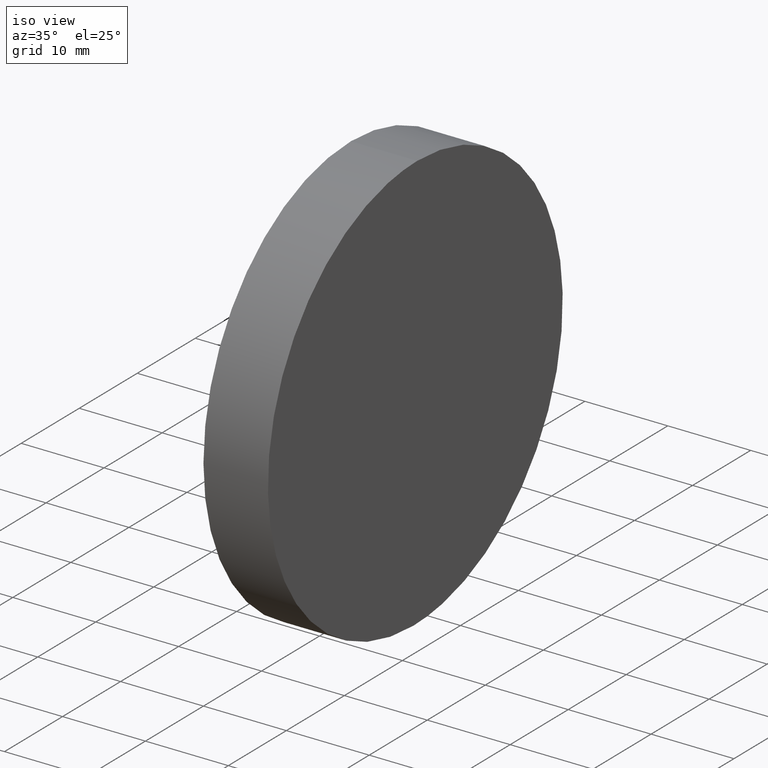
[diagram: clean part render]
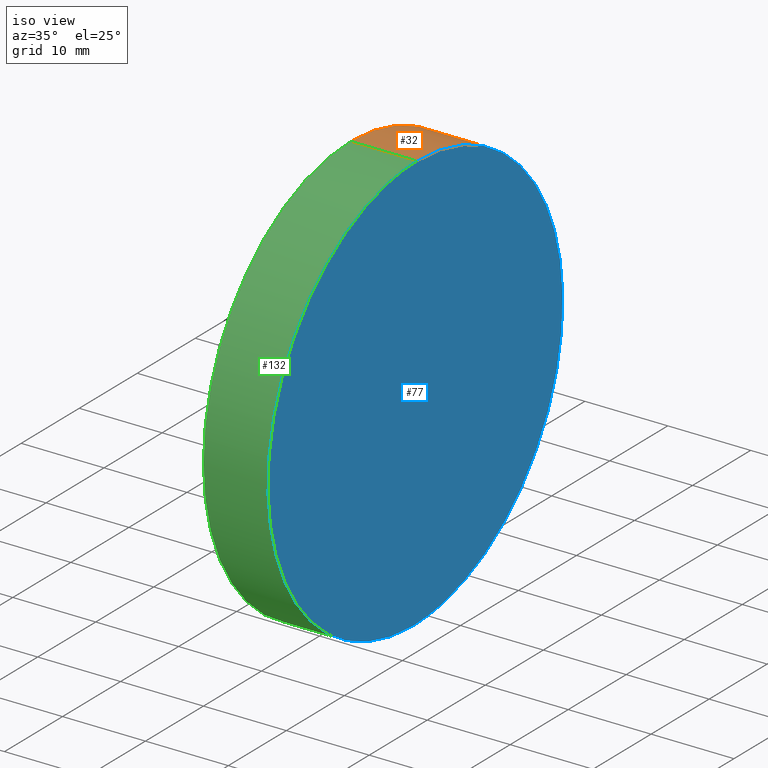
[diagram: same view with three faces highlighted in distinct colors, each labeled with its STEP entity id]
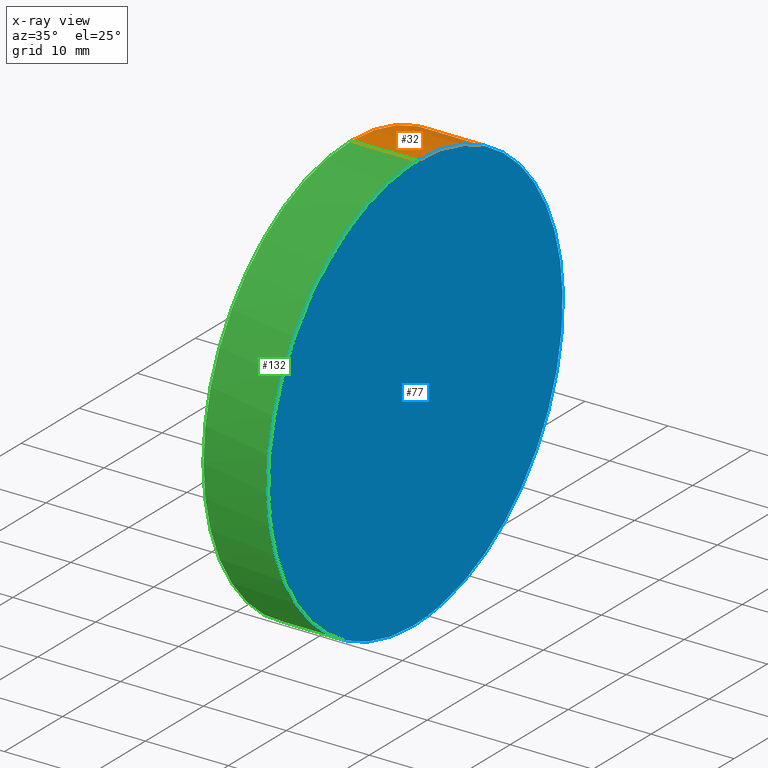
[diagram: x-ray of the same camera — body ghosted, the three highlighted faces saturated]
A machine part, iso view with three faces highlighted in distinct colors.
The next image is the same camera in x-ray (body ghosted, the three faces saturated) — at least one of them is partly hidden behind the body in this view.
Their STEP definitions:

[orange] entity #32 — the highlighted cylindrical surface (partial cylindrical patch) has radius 25.4 mm, axis along (-1, -0, -0).
#1 = VERTEX_POINT ( 'NONE', #109 ) ;
#6 = CARTESIAN_POINT ( 'NONE',  ( 8.000000000000005300, 76.19999999999998900, 25.39999999999999900 ) ) ;
#7 = EDGE_LOOP ( 'NONE', ( #86, #9, #41, #103 ) ) ;
#9 = ORIENTED_EDGE ( 'NONE', *, *, #98, .T. ) ;
#15 = CARTESIAN_POINT ( 'NONE',  ( 12.50000000000000000, 25.40000000000000200, -25.39999999999999900 ) ) ;
#18 = CARTESIAN_POINT ( 'NONE',  ( 0.0000000000000000000, 25.40000000000000200, -25.39999999999999900 ) ) ;
#20 = CARTESIAN_POINT ( 'NONE',  ( 12.50000000000000000, 25.39999999999999900, 0.0000000000000000000 ) ) ;
#22 = AXIS2_PLACEMENT_3D ( 'NONE', #137, #63, #129 ) ;
#23 = VECTOR ( 'NONE', #70, 1000.000000000000000 ) ;
#31 = CARTESIAN_POINT ( 'NONE',  ( 0.0000000000000000000, 25.39999999999999900, 25.39999999999999900 ) ) ;
#32 = ADVANCED_FACE ( 'NONE', ( #37 ), #121, .T. ) ;
#33 = DIRECTION ( 'NONE',  ( 0.0000000000000000000, 0.0000000000000000000, 1.000000000000000000 ) ) ;
#35 = LINE ( 'NONE', #15, #23 ) ;
#37 = FACE_OUTER_BOUND ( 'NONE', #7, .T. ) ;
#41 = ORIENTED_EDGE ( 'NONE', *, *, #133, .F. ) ;
#54 = LINE ( 'NONE', #106, #105 ) ;
#56 = CARTESIAN_POINT ( 'NONE',  ( 8.000000000000005300, 25.39999999999999900, 25.39999999999999900 ) ) ;
#60 =( BOUNDED_CURVE ( )  B_SPLINE_CURVE ( 3, ( #56, #6, #139, #64 ),
 .UNSPECIFIED., .F., .T. ) 
 B_SPLINE_CURVE_WITH_KNOTS ( ( 4, 4 ),
 ( 3.141592653589793100, 6.283185307179586200 ),
 .UNSPECIFIED. ) 
 CURVE ( )  GEOMETRIC_REPRESENTATION_ITEM ( )  RATIONAL_B_SPLINE_CURVE ( ( 1.000000000000000000, 0.3333333333333333700, 0.3333333333333333700, 1.000000000000000000 ) ) 
 REPRESENTATION_ITEM ( '' )  );
#63 = DIRECTION ( 'NONE',  ( -1.000000000000000000, 0.0000000000000000000, 0.0000000000000000000 ) ) ;
#64 = CARTESIAN_POINT ( 'NONE',  ( 7.556675116229812700, 25.40000000000000200, -25.39999999999999900 ) ) ;
#67 = VERTEX_POINT ( 'NONE', #18 ) ;
#70 = DIRECTION ( 'NONE',  ( -1.000000000000000000, -0.0000000000000000000, -0.0000000000000000000 ) ) ;
#74 = VERTEX_POINT ( 'NONE', #31 ) ;
#78 = CARTESIAN_POINT ( 'NONE',  ( 8.000000000000005300, 25.39999999999999900, 25.39999999999999900 ) ) ;
#79 = DIRECTION ( 'NONE',  ( -1.000000000000000000, -0.0000000000000000000, -0.0000000000000000000 ) ) ;
#82 = DIRECTION ( 'NONE',  ( -1.000000000000000000, -0.0000000000000000000, -0.0000000000000000000 ) ) ;
#83 = AXIS2_PLACEMENT_3D ( 'NONE', #20, #82, #33 ) ;
#86 = ORIENTED_EDGE ( 'NONE', *, *, #95, .T. ) ;
#95 = EDGE_CURVE ( 'NONE', #114, #1, #60, .T. ) ;
#98 = EDGE_CURVE ( 'NONE', #1, #67, #35, .T. ) ;
#103 = ORIENTED_EDGE ( 'NONE', *, *, #111, .F. ) ;
#105 = VECTOR ( 'NONE', #79, 1000.000000000000000 ) ;
#106 = CARTESIAN_POINT ( 'NONE',  ( 12.50000000000000000, 25.39999999999999900, 25.39999999999999900 ) ) ;
#109 = CARTESIAN_POINT ( 'NONE',  ( 7.556675116229812700, 25.40000000000000200, -25.39999999999999900 ) ) ;
#111 = EDGE_CURVE ( 'NONE', #114, #74, #54, .T. ) ;
#114 = VERTEX_POINT ( 'NONE', #78 ) ;
#121 = CYLINDRICAL_SURFACE ( 'NONE', #83, 25.39999999999999900 ) ;
#129 = DIRECTION ( 'NONE',  ( 0.0000000000000000000, 0.0000000000000000000, 1.000000000000000000 ) ) ;
#133 = EDGE_CURVE ( 'NONE', #74, #67, #134, .T. ) ;
#134 = CIRCLE ( 'NONE', #22, 25.39999999999999900 ) ;
#137 = CARTESIAN_POINT ( 'NONE',  ( 0.0000000000000000000, 25.39999999999999900, 0.0000000000000000000 ) ) ;
#139 = CARTESIAN_POINT ( 'NONE',  ( 7.556675116229813600, 76.19999999999998900, -25.39999999999999900 ) ) ;

[blue] entity #77 — the highlighted planar face has unit normal (-1, 0, 0.0087).
#1 = VERTEX_POINT ( 'NONE', #109 ) ;
#6 = CARTESIAN_POINT ( 'NONE',  ( 8.000000000000005300, 76.19999999999998900, 25.39999999999999900 ) ) ;
#8 = CARTESIAN_POINT ( 'NONE',  ( 8.000000000000005300, 50.79999999999999700, 25.39999999999999900 ) ) ;
#21 = AXIS2_PLACEMENT_3D ( 'NONE', #8, #71, #140 ) ;
#34 = EDGE_CURVE ( 'NONE', #1, #114, #36, .T. ) ;
#36 =( BOUNDED_CURVE ( )  B_SPLINE_CURVE ( 3, ( #57, #120, #81, #73 ),
 .UNSPECIFIED., .F., .T. ) 
 B_SPLINE_CURVE_WITH_KNOTS ( ( 4, 4 ),
 ( 0.0000000000000000000, 3.141592653589793100 ),
 .UNSPECIFIED. ) 
 CURVE ( )  GEOMETRIC_REPRESENTATION_ITEM ( )  RATIONAL_B_SPLINE_CURVE ( ( 1.000000000000000000, 0.3333333333333333700, 0.3333333333333333700, 1.000000000000000000 ) ) 
 REPRESENTATION_ITEM ( '' )  );
#49 = ORIENTED_EDGE ( 'NONE', *, *, #34, .F. ) ;
#56 = CARTESIAN_POINT ( 'NONE',  ( 8.000000000000005300, 25.39999999999999900, 25.39999999999999900 ) ) ;
#57 = CARTESIAN_POINT ( 'NONE',  ( 7.556675116229812700, 25.40000000000000200, -25.39999999999999900 ) ) ;
#58 = ORIENTED_EDGE ( 'NONE', *, *, #95, .F. ) ;
#60 =( BOUNDED_CURVE ( )  B_SPLINE_CURVE ( 3, ( #56, #6, #139, #64 ),
 .UNSPECIFIED., .F., .T. ) 
 B_SPLINE_CURVE_WITH_KNOTS ( ( 4, 4 ),
 ( 3.141592653589793100, 6.283185307179586200 ),
 .UNSPECIFIED. ) 
 CURVE ( )  GEOMETRIC_REPRESENTATION_ITEM ( )  RATIONAL_B_SPLINE_CURVE ( ( 1.000000000000000000, 0.3333333333333333700, 0.3333333333333333700, 1.000000000000000000 ) ) 
 REPRESENTATION_ITEM ( '' )  );
#64 = CARTESIAN_POINT ( 'NONE',  ( 7.556675116229812700, 25.40000000000000200, -25.39999999999999900 ) ) ;
#71 = DIRECTION ( 'NONE',  ( -0.9999619230641714200, 0.0000000000000000000, 0.008726535498366987100 ) ) ;
#73 = CARTESIAN_POINT ( 'NONE',  ( 8.000000000000005300, 25.39999999999999900, 25.39999999999999900 ) ) ;
#77 = ADVANCED_FACE ( 'NONE', ( #88 ), #92, .F. ) ;
#78 = CARTESIAN_POINT ( 'NONE',  ( 8.000000000000005300, 25.39999999999999900, 25.39999999999999900 ) ) ;
#81 = CARTESIAN_POINT ( 'NONE',  ( 8.000000000000005300, -25.40000000000000900, 25.39999999999998800 ) ) ;
#88 = FACE_OUTER_BOUND ( 'NONE', #127, .T. ) ;
#92 = PLANE ( 'NONE',  #21 ) ;
#95 = EDGE_CURVE ( 'NONE', #114, #1, #60, .T. ) ;
#109 = CARTESIAN_POINT ( 'NONE',  ( 7.556675116229812700, 25.40000000000000200, -25.39999999999999900 ) ) ;
#114 = VERTEX_POINT ( 'NONE', #78 ) ;
#120 = CARTESIAN_POINT ( 'NONE',  ( 7.556675116229813600, -25.40000000000000900, -25.39999999999999900 ) ) ;
#127 = EDGE_LOOP ( 'NONE', ( #58, #49 ) ) ;
#139 = CARTESIAN_POINT ( 'NONE',  ( 7.556675116229813600, 76.19999999999998900, -25.39999999999999900 ) ) ;
#140 = DIRECTION ( 'NONE',  ( 0.008726535498366987100, 0.0000000000000000000, 0.9999619230641714200 ) ) ;

[green] entity #132 — the highlighted cylindrical surface (partial cylindrical patch) has radius 25.4 mm, axis along (-1, -0, -0).
#1 = VERTEX_POINT ( 'NONE', #109 ) ;
#11 = ORIENTED_EDGE ( 'NONE', *, *, #111, .T. ) ;
#15 = CARTESIAN_POINT ( 'NONE',  ( 12.50000000000000000, 25.40000000000000200, -25.39999999999999900 ) ) ;
#18 = CARTESIAN_POINT ( 'NONE',  ( 0.0000000000000000000, 25.40000000000000200, -25.39999999999999900 ) ) ;
#19 = EDGE_LOOP ( 'NONE', ( #110, #97, #11, #122 ) ) ;
#23 = VECTOR ( 'NONE', #70, 1000.000000000000000 ) ;
#28 = AXIS2_PLACEMENT_3D ( 'NONE', #130, #138, #53 ) ;
#31 = CARTESIAN_POINT ( 'NONE',  ( 0.0000000000000000000, 25.39999999999999900, 25.39999999999999900 ) ) ;
#34 = EDGE_CURVE ( 'NONE', #1, #114, #36, .T. ) ;
#35 = LINE ( 'NONE', #15, #23 ) ;
#36 =( BOUNDED_CURVE ( )  B_SPLINE_CURVE ( 3, ( #57, #120, #81, #73 ),
 .UNSPECIFIED., .F., .T. ) 
 B_SPLINE_CURVE_WITH_KNOTS ( ( 4, 4 ),
 ( 0.0000000000000000000, 3.141592653589793100 ),
 .UNSPECIFIED. ) 
 CURVE ( )  GEOMETRIC_REPRESENTATION_ITEM ( )  RATIONAL_B_SPLINE_CURVE ( ( 1.000000000000000000, 0.3333333333333333700, 0.3333333333333333700, 1.000000000000000000 ) ) 
 REPRESENTATION_ITEM ( '' )  );
#44 = DIRECTION ( 'NONE',  ( -1.000000000000000000, 0.0000000000000000000, 0.0000000000000000000 ) ) ;
#53 = DIRECTION ( 'NONE',  ( 0.0000000000000000000, 0.0000000000000000000, 1.000000000000000000 ) ) ;
#54 = LINE ( 'NONE', #106, #105 ) ;
#57 = CARTESIAN_POINT ( 'NONE',  ( 7.556675116229812700, 25.40000000000000200, -25.39999999999999900 ) ) ;
#62 = FACE_OUTER_BOUND ( 'NONE', #19, .T. ) ;
#67 = VERTEX_POINT ( 'NONE', #18 ) ;
#68 = AXIS2_PLACEMENT_3D ( 'NONE', #118, #44, #104 ) ;
#70 = DIRECTION ( 'NONE',  ( -1.000000000000000000, -0.0000000000000000000, -0.0000000000000000000 ) ) ;
#73 = CARTESIAN_POINT ( 'NONE',  ( 8.000000000000005300, 25.39999999999999900, 25.39999999999999900 ) ) ;
#74 = VERTEX_POINT ( 'NONE', #31 ) ;
#78 = CARTESIAN_POINT ( 'NONE',  ( 8.000000000000005300, 25.39999999999999900, 25.39999999999999900 ) ) ;
#79 = DIRECTION ( 'NONE',  ( -1.000000000000000000, -0.0000000000000000000, -0.0000000000000000000 ) ) ;
#81 = CARTESIAN_POINT ( 'NONE',  ( 8.000000000000005300, -25.40000000000000900, 25.39999999999998800 ) ) ;
#97 = ORIENTED_EDGE ( 'NONE', *, *, #34, .T. ) ;
#98 = EDGE_CURVE ( 'NONE', #1, #67, #35, .T. ) ;
#101 = CYLINDRICAL_SURFACE ( 'NONE', #28, 25.39999999999999900 ) ;
#104 = DIRECTION ( 'NONE',  ( 0.0000000000000000000, 0.0000000000000000000, 1.000000000000000000 ) ) ;
#105 = VECTOR ( 'NONE', #79, 1000.000000000000000 ) ;
#106 = CARTESIAN_POINT ( 'NONE',  ( 12.50000000000000000, 25.39999999999999900, 25.39999999999999900 ) ) ;
#109 = CARTESIAN_POINT ( 'NONE',  ( 7.556675116229812700, 25.40000000000000200, -25.39999999999999900 ) ) ;
#110 = ORIENTED_EDGE ( 'NONE', *, *, #98, .F. ) ;
#111 = EDGE_CURVE ( 'NONE', #114, #74, #54, .T. ) ;
#114 = VERTEX_POINT ( 'NONE', #78 ) ;
#118 = CARTESIAN_POINT ( 'NONE',  ( 0.0000000000000000000, 25.39999999999999900, 0.0000000000000000000 ) ) ;
#120 = CARTESIAN_POINT ( 'NONE',  ( 7.556675116229813600, -25.40000000000000900, -25.39999999999999900 ) ) ;
#122 = ORIENTED_EDGE ( 'NONE', *, *, #123, .F. ) ;
#123 = EDGE_CURVE ( 'NONE', #67, #74, #135, .T. ) ;
#130 = CARTESIAN_POINT ( 'NONE',  ( 12.50000000000000000, 25.39999999999999900, 0.0000000000000000000 ) ) ;
#132 = ADVANCED_FACE ( 'NONE', ( #62 ), #101, .T. ) ;
#135 = CIRCLE ( 'NONE', #68, 25.39999999999999900 ) ;
#138 = DIRECTION ( 'NONE',  ( -1.000000000000000000, -0.0000000000000000000, -0.0000000000000000000 ) ) ;